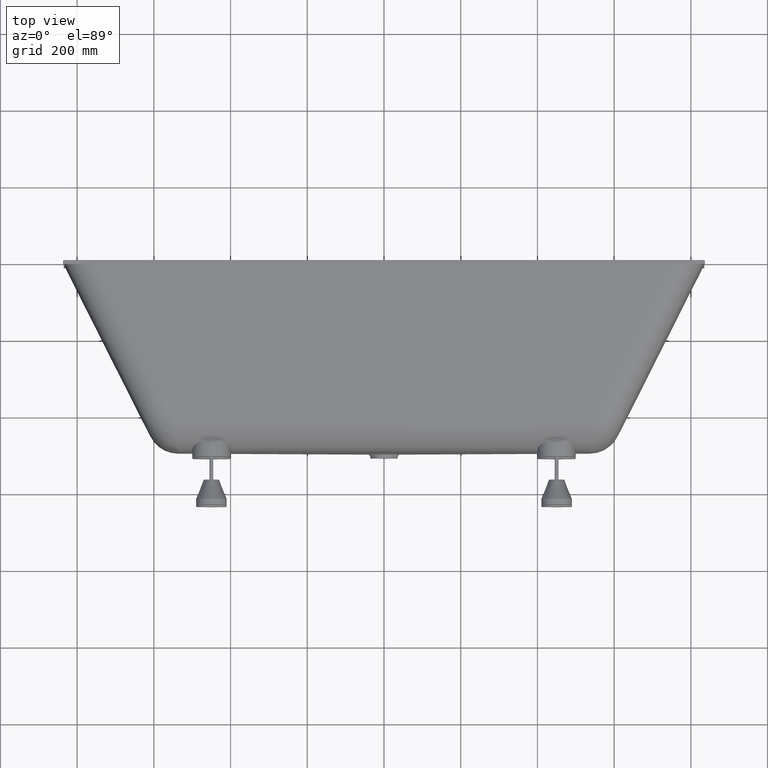
[diagram: clean part render]
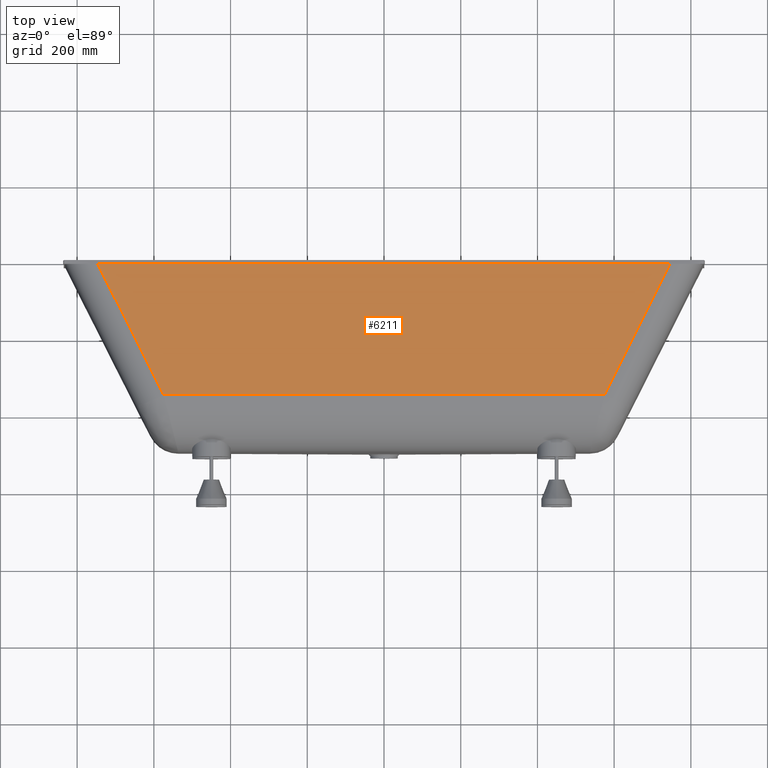
[diagram: same view with one face highlighted and labeled with its STEP entity id]
A machine part, top view. The second image highlights one B-rep face of the part: STEP entity #6211.
In plain terms, the highlighted planar face has unit normal (0, -0.1122, 0.9937).
Its self-contained STEP definition (entity closure, byte-faithful):
#268 = LINE ( 'NONE', #8729, #6380 ) ;
#358 = VECTOR ( 'NONE', #4015, 1000.000000000000000 ) ;
#363 = EDGE_CURVE ( 'NONE', #4708, #8678, #268, .T. ) ;
#713 = EDGE_CURVE ( 'NONE', #4708, #2785, #10092, .T. ) ;
#857 = DIRECTION ( 'NONE',  ( 0.4471435776645231200, 0.8888119278474394500, 0.1003791704961174800 ) ) ;
#973 = CARTESIAN_POINT ( 'NONE',  ( 736.7440118179032400, -28.65054714103081700, 326.8278829508298600 ) ) ;
#1314 = ORIENTED_EDGE ( 'NONE', *, *, #713, .F. ) ;
#1503 = LINE ( 'NONE', #973, #5067 ) ;
#2282 = EDGE_CURVE ( 'NONE', #9084, #2785, #1503, .T. ) ;
#2785 = VERTEX_POINT ( 'NONE', #3558 ) ;
#3225 = VECTOR ( 'NONE', #6399, 1000.000000000000000 ) ;
#3299 = CARTESIAN_POINT ( 'NONE',  ( -751.1575314268408200, 0.0000000000000000000, 330.0635710263057900 ) ) ;
#3389 = EDGE_LOOP ( 'NONE', ( #8740, #3924, #1314, #5844 ) ) ;
#3558 = CARTESIAN_POINT ( 'NONE',  ( 751.1575314268407100, 0.0000000000000000000, 330.0635710263056200 ) ) ;
#3924 = ORIENTED_EDGE ( 'NONE', *, *, #2282, .T. ) ;
#3993 = CARTESIAN_POINT ( 'NONE',  ( 825.0000000000000000, -350.5167838247557500, 290.4774866107789000 ) ) ;
#4015 = DIRECTION ( 'NONE',  ( 1.000000000000000000, -0.0000000000000000000, -0.0000000000000000000 ) ) ;
#4708 = VERTEX_POINT ( 'NONE', #3299 ) ;
#5067 = VECTOR ( 'NONE', #857, 1000.000000000000100 ) ;
#5226 = CARTESIAN_POINT ( 'NONE',  ( 574.8195190304029400, -350.5167838247557500, 290.4774866107788400 ) ) ;
#5844 = ORIENTED_EDGE ( 'NONE', *, *, #363, .T. ) ;
#6005 = EDGE_CURVE ( 'NONE', #8678, #9084, #6754, .T. ) ;
#6211 = ADVANCED_FACE ( 'NONE', ( #7964 ), #8711, .T. ) ;
#6316 = CARTESIAN_POINT ( 'NONE',  ( 825.0000000000000000, -1.122229322712471300, 329.9368305483813500 ) ) ;
#6326 = CARTESIAN_POINT ( 'NONE',  ( 825.0000000000000000, 0.0000000000000000000, 330.0635710263057400 ) ) ;
#6380 = VECTOR ( 'NONE', #8742, 1000.000000000000100 ) ;
#6399 = DIRECTION ( 'NONE',  ( 1.000000000000000000, 0.0000000000000000000, 0.0000000000000000000 ) ) ;
#6754 = LINE ( 'NONE', #3993, #358 ) ;
#7043 = DIRECTION ( 'NONE',  ( 0.0000000000000000000, -0.1122229322712471200, 0.9936830548381325700 ) ) ;
#7161 = CARTESIAN_POINT ( 'NONE',  ( -574.8195190304028300, -350.5167838247557500, 290.4774866107789000 ) ) ;
#7964 = FACE_OUTER_BOUND ( 'NONE', #3389, .T. ) ;
#7974 = DIRECTION ( 'NONE',  ( -1.000000000000000000, 0.0000000000000000000, 0.0000000000000000000 ) ) ;
#8678 = VERTEX_POINT ( 'NONE', #7161 ) ;
#8711 = PLANE ( 'NONE',  #9804 ) ;
#8729 = CARTESIAN_POINT ( 'NONE',  ( -435.5730332988887300, -627.3046962788269000, 259.2180714465614000 ) ) ;
#8740 = ORIENTED_EDGE ( 'NONE', *, *, #6005, .T. ) ;
#8742 = DIRECTION ( 'NONE',  ( 0.4471435776645231200, -0.8888119278474394500, -0.1003791704961174800 ) ) ;
#9084 = VERTEX_POINT ( 'NONE', #5226 ) ;
#9804 = AXIS2_PLACEMENT_3D ( 'NONE', #6316, #7043, #7974 ) ;
#10092 = LINE ( 'NONE', #6326, #3225 ) ;